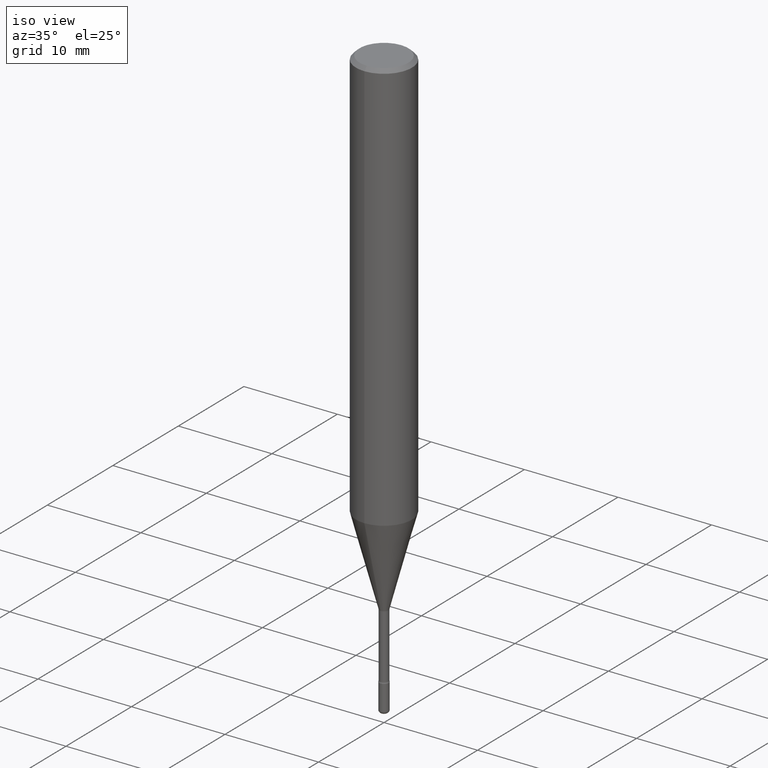
[diagram: clean part render]
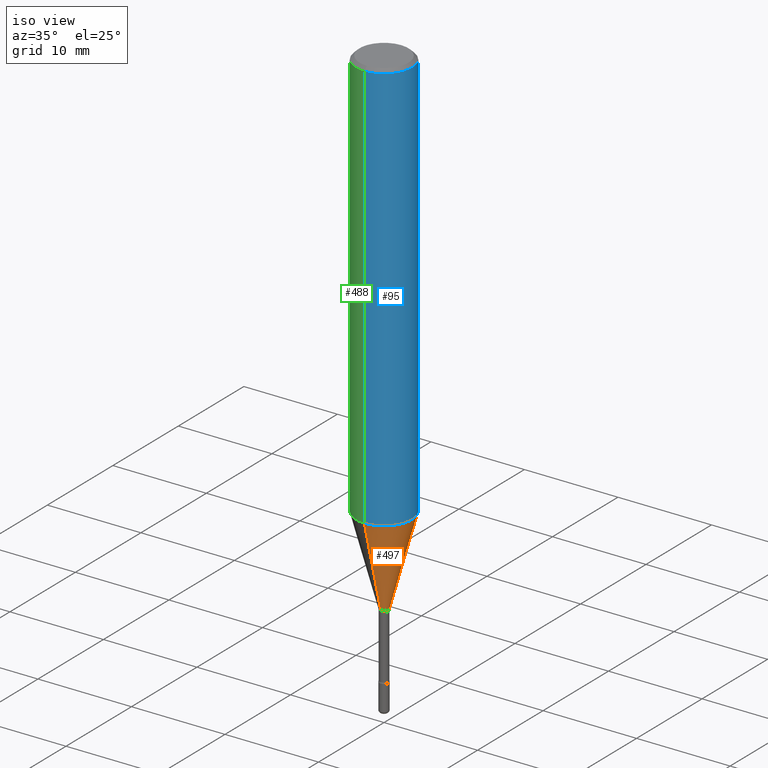
[diagram: same view with three faces highlighted in distinct colors, each labeled with its STEP entity id]
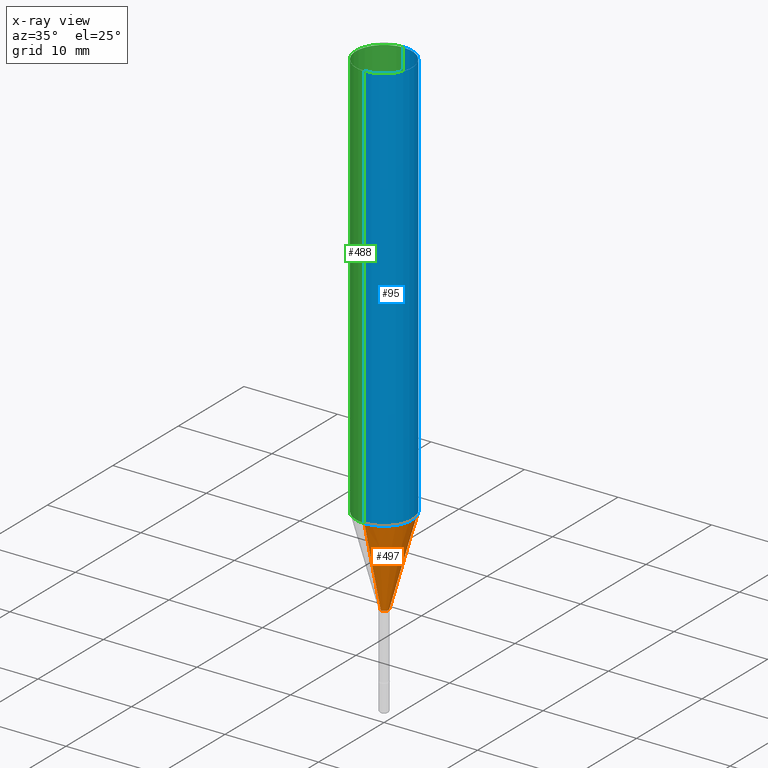
[diagram: x-ray of the same camera — body ghosted, the three highlighted faces saturated]
A machine part, iso view with three faces highlighted in distinct colors.
The next image is the same camera in x-ray (body ghosted, the three faces saturated) — at least one of them is partly hidden behind the body in this view.
Their STEP definitions:

[orange] entity #497 — the highlighted conical surface has half-angle 15 deg.
#26 = CIRCLE ( 'NONE', #305, 0.1180999999999999966 ) ;
#39 = EDGE_LOOP ( 'NONE', ( #369, #478, #275, #245 ) ) ;
#70 = EDGE_CURVE ( 'NONE', #525, #120, #26, .T. ) ;
#103 = DIRECTION ( 'NONE',  ( -2.445280224282367565E-29, 3.491751398861325958E-15, 1.000000000000000000 ) ) ;
#112 = DIRECTION ( 'NONE',  ( -6.982962677686265133E-15, -1.000000000000000000, 0.000000000000000000 ) ) ;
#120 = VERTEX_POINT ( 'NONE', #219 ) ;
#169 = VECTOR ( 'NONE', #515, 39.37007874015748854 ) ;
#199 = CARTESIAN_POINT ( 'NONE',  ( 4.871165252697454148E-16, 0.01901111260565663263, -2.104392501787273329 ) ) ;
#219 = CARTESIAN_POINT ( 'NONE',  ( 8.391509709327204011E-16, 0.1180999999999939182, -1.734587739566141096 ) ) ;
#245 = ORIENTED_EDGE ( 'NONE', *, *, #443, .F. ) ;
#257 = CARTESIAN_POINT ( 'NONE',  ( -8.246878922347057627E-16, -0.1181000000000060751, -1.734587739566140430 ) ) ;
#259 = DIRECTION ( 'NONE',  ( -2.445280224282367565E-29, 3.491751398861325958E-15, 1.000000000000000000 ) ) ;
#275 = ORIENTED_EDGE ( 'NONE', *, *, #70, .F. ) ;
#282 = CIRCLE ( 'NONE', #459, 0.01901111260566398092 ) ;
#283 = CARTESIAN_POINT ( 'NONE',  ( -1.327538897865910147E-16, -0.01901111260567132921, -2.104392501787273329 ) ) ;
#289 = DIRECTION ( 'NONE',  ( -1.807323732225328167E-15, -0.2588190451025179084, 0.9659258262890690894 ) ) ;
#301 = DIRECTION ( 'NONE',  ( -2.445280224282367565E-29, 3.491751398861325958E-15, 1.000000000000000000 ) ) ;
#302 = CARTESIAN_POINT ( 'NONE',  ( 4.241553096843737534E-29, -6.056749166077777869E-15, -1.734587739566140652 ) ) ;
#305 = AXIS2_PLACEMENT_3D ( 'NONE', #302, #259, #385 ) ;
#321 = EDGE_CURVE ( 'NONE', #457, #362, #282, .T. ) ;
#335 = CARTESIAN_POINT ( 'NONE',  ( 1.350820796067695411E-16, 0.01901111260565663263, -2.104392501787273329 ) ) ;
#362 = VERTEX_POINT ( 'NONE', #199 ) ;
#369 = ORIENTED_EDGE ( 'NONE', *, *, #321, .T. ) ;
#385 = DIRECTION ( 'NONE',  ( -6.982962677686265922E-15, -1.000000000000000000, 4.626330217890369336E-15 ) ) ;
#399 = CARTESIAN_POINT ( 'NONE',  ( 5.145829368748516646E-29, -7.348015461868996732E-15, -2.104392501787273329 ) ) ;
#402 = DIRECTION ( 'NONE',  ( -6.982962677686265133E-15, -1.000000000000000000, 0.000000000000000000 ) ) ;
#405 = AXIS2_PLACEMENT_3D ( 'NONE', #474, #301, #112 ) ;
#443 = EDGE_CURVE ( 'NONE', #457, #525, #513, .T. ) ;
#457 = VERTEX_POINT ( 'NONE', #283 ) ;
#459 = AXIS2_PLACEMENT_3D ( 'NONE', #399, #103, #402 ) ;
#471 = CARTESIAN_POINT ( 'NONE',  ( -1.327538897865910147E-16, -0.01901111260567132921, -2.104392501787273329 ) ) ;
#474 = CARTESIAN_POINT ( 'NONE',  ( 5.145829368748516646E-29, -7.348015461868996732E-15, -2.104392501787273329 ) ) ;
#478 = ORIENTED_EDGE ( 'NONE', *, *, #511, .T. ) ;
#497 = ADVANCED_FACE ( 'NONE', ( #509 ), #568, .T. ) ;
#509 = FACE_OUTER_BOUND ( 'NONE', #39, .T. ) ;
#511 = EDGE_CURVE ( 'NONE', #362, #120, #520, .T. ) ;
#513 = LINE ( 'NONE', #471, #544 ) ;
#515 = DIRECTION ( 'NONE',  ( 1.839019923739597949E-15, 0.2588190451025246253, 0.9659258262890670910 ) ) ;
#520 = LINE ( 'NONE', #335, #169 ) ;
#525 = VERTEX_POINT ( 'NONE', #257 ) ;
#544 = VECTOR ( 'NONE', #289, 39.37007874015748143 ) ;
#568 = CONICAL_SURFACE ( 'NONE', #405, 0.01901111260566398092, 0.2617993877991499629 ) ;

[blue] entity #95 — the highlighted cylindrical surface (edge-blend (fillet) strip) has radius 2.9997 mm, axis along (-0, 0, 1).
#8 = VECTOR ( 'NONE', #518, 39.37007874015748143 ) ;
#18 = CARTESIAN_POINT ( 'NONE',  ( 8.391509709326781971E-16, 0.1180999999999999966, 6.569755868572347380E-17 ) ) ;
#26 = CIRCLE ( 'NONE', #305, 0.1180999999999999966 ) ;
#31 = EDGE_CURVE ( 'NONE', #529, #159, #429, .T. ) ;
#38 = DIRECTION ( 'NONE',  ( -2.445280224282367565E-29, 3.491751398861325958E-15, 1.000000000000000000 ) ) ;
#47 = EDGE_CURVE ( 'NONE', #525, #529, #304, .T. ) ;
#54 = DIRECTION ( 'NONE',  ( -2.445280224282367845E-29, 3.491751398861325958E-15, 1.000000000000000000 ) ) ;
#70 = EDGE_CURVE ( 'NONE', #525, #120, #26, .T. ) ;
#86 = DIRECTION ( 'NONE',  ( -2.445280224282367565E-29, 3.491751398861325958E-15, 1.000000000000000000 ) ) ;
#95 = ADVANCED_FACE ( 'NONE', ( #341 ), #347, .T. ) ;
#120 = VERTEX_POINT ( 'NONE', #219 ) ;
#121 = CARTESIAN_POINT ( 'NONE',  ( -8.246878922347475723E-16, -0.1181000000000000522, -0.01499999999999961607 ) ) ;
#159 = VERTEX_POINT ( 'NONE', #436 ) ;
#164 = DIRECTION ( 'NONE',  ( -6.982962677686265922E-15, -1.000000000000000000, 3.491751398861325958E-15 ) ) ;
#165 = ORIENTED_EDGE ( 'NONE', *, *, #31, .F. ) ;
#168 = DIRECTION ( 'NONE',  ( -6.982962677686265922E-15, -1.000000000000000000, 3.487819265831411744E-15 ) ) ;
#189 = VECTOR ( 'NONE', #54, 39.37007874015748143 ) ;
#219 = CARTESIAN_POINT ( 'NONE',  ( 8.391509709327204011E-16, 0.1180999999999939182, -1.734587739566141096 ) ) ;
#257 = CARTESIAN_POINT ( 'NONE',  ( -8.246878922347057627E-16, -0.1181000000000060751, -1.734587739566140430 ) ) ;
#259 = DIRECTION ( 'NONE',  ( -2.445280224282367565E-29, 3.491751398861325958E-15, 1.000000000000000000 ) ) ;
#296 = ORIENTED_EDGE ( 'NONE', *, *, #306, .T. ) ;
#302 = CARTESIAN_POINT ( 'NONE',  ( 4.241553096843737534E-29, -6.056749166077777869E-15, -1.734587739566140652 ) ) ;
#304 = LINE ( 'NONE', #527, #8 ) ;
#305 = AXIS2_PLACEMENT_3D ( 'NONE', #302, #259, #385 ) ;
#306 = EDGE_CURVE ( 'NONE', #120, #159, #541, .T. ) ;
#341 = FACE_OUTER_BOUND ( 'NONE', #557, .T. ) ;
#347 = CYLINDRICAL_SURFACE ( 'NONE', #451, 0.1180999999999999966 ) ;
#363 = ORIENTED_EDGE ( 'NONE', *, *, #47, .F. ) ;
#381 = CARTESIAN_POINT ( 'NONE',  ( 3.667920336423558407E-31, -5.237627098291998527E-17, -0.01500000000000002720 ) ) ;
#385 = DIRECTION ( 'NONE',  ( -6.982962677686265922E-15, -1.000000000000000000, 4.626330217890369336E-15 ) ) ;
#429 = CIRCLE ( 'NONE', #504, 0.1180999999999999966 ) ;
#436 = CARTESIAN_POINT ( 'NONE',  ( 8.391509709327210914E-16, 0.1180999999999999689, -0.01500000000000044006 ) ) ;
#451 = AXIS2_PLACEMENT_3D ( 'NONE', #481, #86, #164 ) ;
#481 = CARTESIAN_POINT ( 'NONE',  ( -1.169113584055446105E-44, 1.669184350826100908E-30, 4.780733988912460139E-16 ) ) ;
#504 = AXIS2_PLACEMENT_3D ( 'NONE', #381, #38, #168 ) ;
#518 = DIRECTION ( 'NONE',  ( -2.445280224282367845E-29, 3.491751398861325958E-15, 1.000000000000000000 ) ) ;
#519 = ORIENTED_EDGE ( 'NONE', *, *, #70, .T. ) ;
#525 = VERTEX_POINT ( 'NONE', #257 ) ;
#527 = CARTESIAN_POINT ( 'NONE',  ( -8.246878922347479668E-16, -0.1180999999999999966, 8.904492390967687020E-16 ) ) ;
#529 = VERTEX_POINT ( 'NONE', #121 ) ;
#541 = LINE ( 'NONE', #18, #189 ) ;
#557 = EDGE_LOOP ( 'NONE', ( #519, #296, #165, #363 ) ) ;

[green] entity #488 — the highlighted cylindrical surface (edge-blend (fillet) strip) has radius 2.9997 mm, axis along (-0, 0, 1).
#8 = VECTOR ( 'NONE', #518, 39.37007874015748143 ) ;
#18 = CARTESIAN_POINT ( 'NONE',  ( 8.391509709326781971E-16, 0.1180999999999999966, 6.569755868572347380E-17 ) ) ;
#22 = DIRECTION ( 'NONE',  ( -6.982962677686265922E-15, -1.000000000000000000, 4.626330217890369336E-15 ) ) ;
#29 = FACE_OUTER_BOUND ( 'NONE', #482, .T. ) ;
#47 = EDGE_CURVE ( 'NONE', #525, #529, #304, .T. ) ;
#54 = DIRECTION ( 'NONE',  ( -2.445280224282367845E-29, 3.491751398861325958E-15, 1.000000000000000000 ) ) ;
#110 = ORIENTED_EDGE ( 'NONE', *, *, #477, .T. ) ;
#120 = VERTEX_POINT ( 'NONE', #219 ) ;
#121 = CARTESIAN_POINT ( 'NONE',  ( -8.246878922347475723E-16, -0.1181000000000000522, -0.01499999999999961607 ) ) ;
#159 = VERTEX_POINT ( 'NONE', #436 ) ;
#189 = VECTOR ( 'NONE', #54, 39.37007874015748143 ) ;
#195 = CYLINDRICAL_SURFACE ( 'NONE', #450, 0.1180999999999999966 ) ;
#197 = ORIENTED_EDGE ( 'NONE', *, *, #47, .T. ) ;
#203 = CARTESIAN_POINT ( 'NONE',  ( 3.667920336423558407E-31, -5.237627098291998527E-17, -0.01500000000000002720 ) ) ;
#219 = CARTESIAN_POINT ( 'NONE',  ( 8.391509709327204011E-16, 0.1180999999999939182, -1.734587739566141096 ) ) ;
#257 = CARTESIAN_POINT ( 'NONE',  ( -8.246878922347057627E-16, -0.1181000000000060751, -1.734587739566140430 ) ) ;
#268 = CIRCLE ( 'NONE', #338, 0.1180999999999999966 ) ;
#271 = AXIS2_PLACEMENT_3D ( 'NONE', #203, #366, #550 ) ;
#277 = ORIENTED_EDGE ( 'NONE', *, *, #552, .F. ) ;
#304 = LINE ( 'NONE', #527, #8 ) ;
#306 = EDGE_CURVE ( 'NONE', #120, #159, #541, .T. ) ;
#325 = DIRECTION ( 'NONE',  ( -6.982962677686265922E-15, -1.000000000000000000, 3.491751398861325958E-15 ) ) ;
#338 = AXIS2_PLACEMENT_3D ( 'NONE', #462, #417, #22 ) ;
#366 = DIRECTION ( 'NONE',  ( -2.445280224282367565E-29, 3.491751398861325958E-15, 1.000000000000000000 ) ) ;
#367 = CARTESIAN_POINT ( 'NONE',  ( -1.169113584055446105E-44, 1.669184350826100908E-30, 4.780733988912460139E-16 ) ) ;
#376 = DIRECTION ( 'NONE',  ( -2.445280224282367565E-29, 3.491751398861325958E-15, 1.000000000000000000 ) ) ;
#417 = DIRECTION ( 'NONE',  ( -2.445280224282367565E-29, 3.491751398861325958E-15, 1.000000000000000000 ) ) ;
#436 = CARTESIAN_POINT ( 'NONE',  ( 8.391509709327210914E-16, 0.1180999999999999689, -0.01500000000000044006 ) ) ;
#450 = AXIS2_PLACEMENT_3D ( 'NONE', #367, #376, #325 ) ;
#462 = CARTESIAN_POINT ( 'NONE',  ( 4.241553096843737534E-29, -6.056749166077777869E-15, -1.734587739566140652 ) ) ;
#477 = EDGE_CURVE ( 'NONE', #120, #525, #268, .T. ) ;
#482 = EDGE_LOOP ( 'NONE', ( #514, #110, #197, #277 ) ) ;
#488 = ADVANCED_FACE ( 'NONE', ( #29 ), #195, .T. ) ;
#490 = CIRCLE ( 'NONE', #271, 0.1180999999999999966 ) ;
#514 = ORIENTED_EDGE ( 'NONE', *, *, #306, .F. ) ;
#518 = DIRECTION ( 'NONE',  ( -2.445280224282367845E-29, 3.491751398861325958E-15, 1.000000000000000000 ) ) ;
#525 = VERTEX_POINT ( 'NONE', #257 ) ;
#527 = CARTESIAN_POINT ( 'NONE',  ( -8.246878922347479668E-16, -0.1180999999999999966, 8.904492390967687020E-16 ) ) ;
#529 = VERTEX_POINT ( 'NONE', #121 ) ;
#541 = LINE ( 'NONE', #18, #189 ) ;
#550 = DIRECTION ( 'NONE',  ( -6.982962677686265922E-15, -1.000000000000000000, 3.487819265831411744E-15 ) ) ;
#552 = EDGE_CURVE ( 'NONE', #159, #529, #490, .T. ) ;